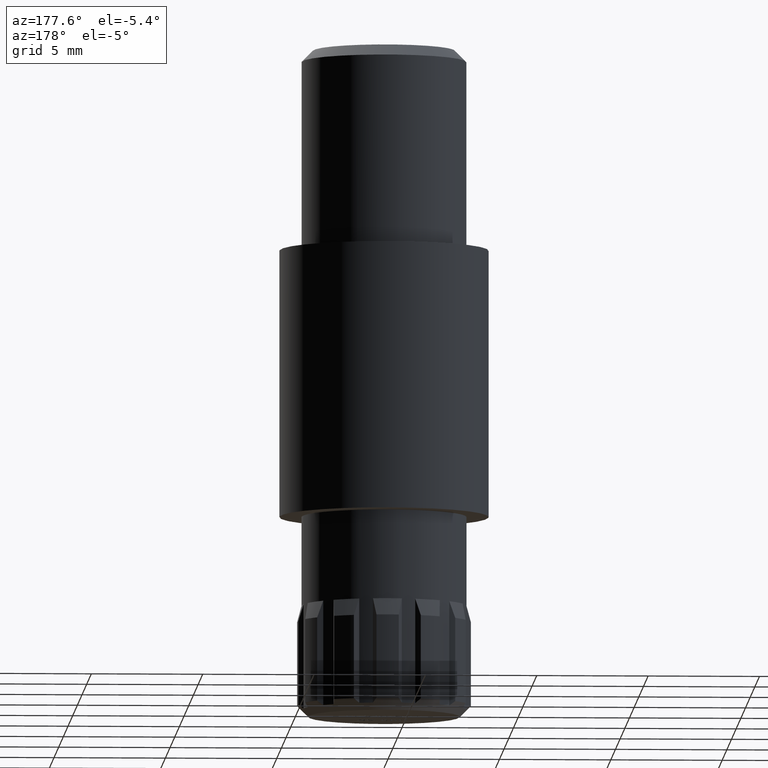
[diagram: clean part render]
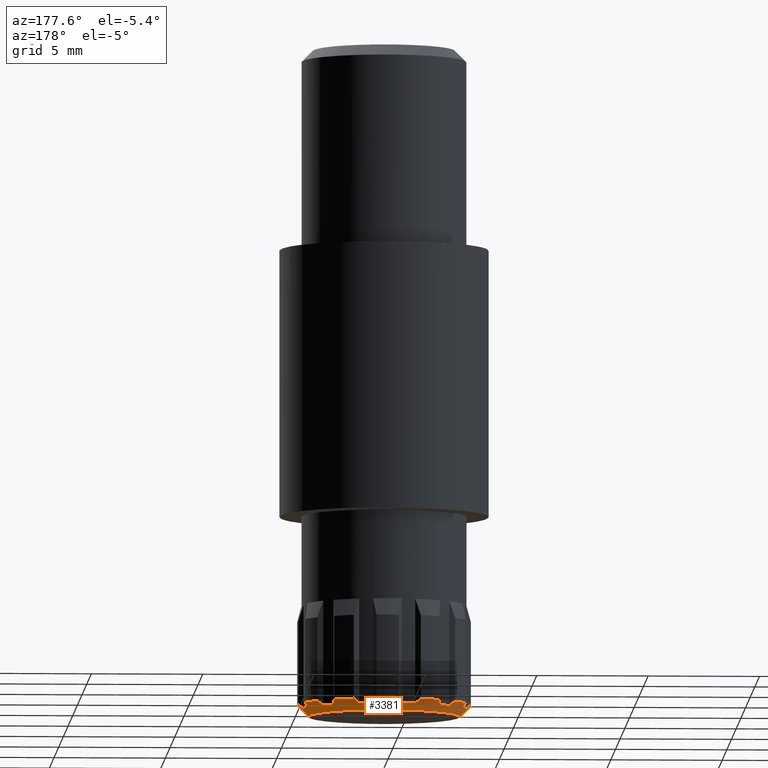
[diagram: same view with one face highlighted and labeled with its STEP entity id]
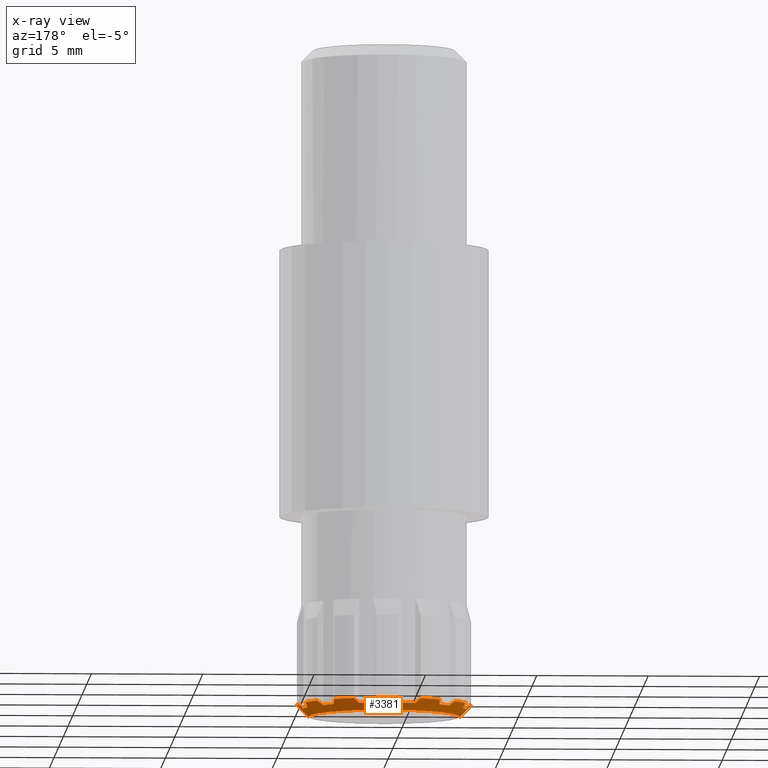
[diagram: x-ray of the same camera — body ghosted, the highlighted face saturated]
A machine part, auxiliary view. The second image highlights one B-rep face of the part: STEP entity #3381.
The next image is the same camera in x-ray: the body ghosted, the highlighted face saturated — about 0% of this face is hidden behind the body in this view.
In plain terms, the highlighted conical surface has half-angle 45 deg.
Its self-contained STEP definition (entity closure, byte-faithful):
#11 = DIRECTION ( 'NONE',  ( 0.0000000000000000000, 0.0000000000000000000, 1.000000000000000000 ) ) ;
#36 = VECTOR ( 'NONE', #270, 1000.000000000000000 ) ;
#42 = CARTESIAN_POINT ( 'NONE',  ( 2.920231908458082800, 2.378358262402964700, 0.3656850806298397300 ) ) ;
#114 = ORIENTED_EDGE ( 'NONE', *, *, #5816, .F. ) ;
#270 = DIRECTION ( 'NONE',  ( 0.7071067811865474600, 0.0000000000000000000, 0.7071067811865476800 ) ) ;
#394 = DIRECTION ( 'NONE',  ( -0.7071067811865474600, 8.659560562354931600E-017, 0.7071067811865476800 ) ) ;
#398 = VERTEX_POINT ( 'NONE', #1101 ) ;
#399 = CIRCLE ( 'NONE', #12137, 3.899999999999999900 ) ;
#608 = CARTESIAN_POINT ( 'NONE',  ( 0.0000000000000000000, 0.0000000000000000000, 0.3000000000000002100 ) ) ;
#660 = DIRECTION ( 'NONE',  ( -1.000000000000000000, 0.0000000000000000000, 0.0000000000000000000 ) ) ;
#679 = CARTESIAN_POINT ( 'NONE',  ( -2.829461126721935800, 2.384145493121054800, 0.3000000000000002100 ) ) ;
#687 = B_SPLINE_CURVE_WITH_KNOTS ( 'NONE', 3,
 ( #13293, #5889, #12213, #679 ),
 .UNSPECIFIED., .F., .F.,
 ( 4, 4 ),
 ( 2.510442313145261500E-007, 0.0003368312130818285500 ),
 .UNSPECIFIED. ) ;
#707 = CARTESIAN_POINT ( 'NONE',  ( -0.6500000000000001300, 3.642457961322272700, 0.3000000000000002100 ) ) ;
#775 = CARTESIAN_POINT ( 'NONE',  ( 0.0000000000000000000, 0.0000000000000000000, 0.3000000000000002100 ) ) ;
#851 = ORIENTED_EDGE ( 'NONE', *, *, #1864, .T. ) ;
#921 = CARTESIAN_POINT ( 'NONE',  ( 0.0000000000000000000, 0.0000000000000000000, -1.781601778477175500E-016 ) ) ;
#943 = VERTEX_POINT ( 'NONE', #5193 ) ;
#1022 = CIRCLE ( 'NONE', #10922, 3.899999999999999900 ) ;
#1050 = CARTESIAN_POINT ( 'NONE',  ( -3.099626844888817800, 2.366920662473627000, 0.4999999999999998900 ) ) ;
#1051 = VERTEX_POINT ( 'NONE', #6027 ) ;
#1097 = CARTESIAN_POINT ( 'NONE',  ( 0.0000000000000000000, 0.0000000000000000000, 0.4999999999999998900 ) ) ;
#1098 = B_SPLINE_CURVE_WITH_KNOTS ( 'NONE', 3,
 ( #1871, #9256, #2914, #10310 ),
 .UNSPECIFIED., .F., .F.,
 ( 4, 4 ),
 ( 2.963328429679369900E-007, 0.0003368765016934683000 ),
 .UNSPECIFIED. ) ;
#1101 = CARTESIAN_POINT ( 'NONE',  ( 3.642457961322274100, 0.6499999999999872500, 0.2999999999999999300 ) ) ;
#1200 = AXIS2_PLACEMENT_3D ( 'NONE', #9823, #3473, #10869 ) ;
#1230 = CARTESIAN_POINT ( 'NONE',  ( 0.5000000000000000000, 3.867815921162743200, 0.4999999999999998900 ) ) ;
#1346 = CARTESIAN_POINT ( 'NONE',  ( 0.0000000000000000000, 0.0000000000000000000, 0.4999999999999998900 ) ) ;
#1439 = CIRCLE ( 'NONE', #13045, 3.899999999999999900 ) ;
#1461 = ORIENTED_EDGE ( 'NONE', *, *, #9744, .T. ) ;
#1544 = CARTESIAN_POINT ( 'NONE',  ( -1.500895258689105800, 3.599626844888864400, 0.4999999999999998900 ) ) ;
#1555 = CIRCLE ( 'NONE', #1200, 3.700000000000000200 ) ;
#1556 = ORIENTED_EDGE ( 'NONE', *, *, #9678, .F. ) ;
#1626 = AXIS2_PLACEMENT_3D ( 'NONE', #6272, #11, #7355 ) ;
#1640 = DIRECTION ( 'NONE',  ( 1.000000000000000000, 0.0000000000000000000, 0.0000000000000000000 ) ) ;
#1641 = ORIENTED_EDGE ( 'NONE', *, *, #10101, .F. ) ;
#1695 = DIRECTION ( 'NONE',  ( 0.0000000000000000000, 0.0000000000000000000, 1.000000000000000000 ) ) ;
#1749 = B_SPLINE_CURVE_WITH_KNOTS ( 'NONE', 3,
 ( #6301, #7535, #9701, #3354 ),
 .UNSPECIFIED., .F., .F.,
 ( 4, 4 ),
 ( 3.009594860119628600E-007, 0.0003368811283365132100 ),
 .UNSPECIFIED. ) ;
#1815 = DIRECTION ( 'NONE',  ( 1.000000000000000000, 0.0000000000000000000, 0.0000000000000000000 ) ) ;
#1864 = EDGE_CURVE ( 'NONE', #11391, #943, #4296, .T. ) ;
#1871 = CARTESIAN_POINT ( 'NONE',  ( -0.6500000000000001300, 3.642457961322272700, 0.3000000000000002100 ) ) ;
#1876 = CARTESIAN_POINT ( 'NONE',  ( 1.420643085886664500, 3.559873159312598700, 0.4324234514250552300 ) ) ;
#1910 = AXIS2_PLACEMENT_3D ( 'NONE', #8028, #1695, #9069 ) ;
#1957 = DIRECTION ( 'NONE',  ( -1.000000000000000000, 0.0000000000000000000, 0.0000000000000000000 ) ) ;
#2067 = ORIENTED_EDGE ( 'NONE', *, *, #3444, .T. ) ;
#2090 = CARTESIAN_POINT ( 'NONE',  ( -3.867815921162737900, 0.5000000000000405200, 0.4999999999999998900 ) ) ;
#2136 = CARTESIAN_POINT ( 'NONE',  ( -3.642457961322265600, 0.6500000000000382100, 0.3000000000000002100 ) ) ;
#2152 = CARTESIAN_POINT ( 'NONE',  ( 2.829461126721969100, 2.384145493121014400, 0.2999999999999998200 ) ) ;
#2153 = DIRECTION ( 'NONE',  ( -1.000000000000000000, 0.0000000000000000000, 0.0000000000000000000 ) ) ;
#2238 = EDGE_CURVE ( 'NONE', #9791, #8843, #5072, .T. ) ;
#2400 = VERTEX_POINT ( 'NONE', #3761 ) ;
#2417 = DIRECTION ( 'NONE',  ( 0.0000000000000000000, 0.0000000000000000000, 1.000000000000000000 ) ) ;
#2434 = B_SPLINE_CURVE_WITH_KNOTS ( 'NONE', 3,
 ( #6774, #8928, #12090, #5758 ),
 .UNSPECIFIED., .F., .F.,
 ( 4, 4 ),
 ( 2.510442313139203600E-007, 0.0003368312130818276300 ),
 .UNSPECIFIED. ) ;
#2678 = EDGE_CURVE ( 'NONE', #13649, #2697, #5972, .T. ) ;
#2696 = VERTEX_POINT ( 'NONE', #10016 ) ;
#2697 = VERTEX_POINT ( 'NONE', #13361 ) ;
#2742 = CONICAL_SURFACE ( 'NONE', #6476, 3.899999999999999900, 0.7853981633974481700 ) ;
#2785 = LINE ( 'NONE', #12858, #36 ) ;
#2818 = CARTESIAN_POINT ( 'NONE',  ( -2.384145493120984700, 2.829461126721994000, 0.3000000000000002700 ) ) ;
#2859 = CARTESIAN_POINT ( 'NONE',  ( 3.867815921162745000, 0.4999999999999874500, 0.4999999999999998900 ) ) ;
#2914 = CARTESIAN_POINT ( 'NONE',  ( -0.5496235775677342800, 3.793262133158410000, 0.4324234514250556200 ) ) ;
#3114 = ORIENTED_EDGE ( 'NONE', *, *, #5760, .T. ) ;
#3189 = CARTESIAN_POINT ( 'NONE',  ( -3.867815921162737900, 0.5000000000000405200, 0.4999999999999998900 ) ) ;
#3354 = CARTESIAN_POINT ( 'NONE',  ( 0.6500000000000001300, 3.642457961322272700, 0.3000000000000002100 ) ) ;
#3377 = ORIENTED_EDGE ( 'NONE', *, *, #9412, .F. ) ;
#3381 = ADVANCED_FACE ( 'NONE', ( #11844 ), #2742, .T. ) ;
#3444 = EDGE_CURVE ( 'NONE', #10409, #7168, #687, .T. ) ;
#3462 = CARTESIAN_POINT ( 'NONE',  ( 0.0000000000000000000, 0.0000000000000000000, 0.4999999999999998900 ) ) ;
#3473 = DIRECTION ( 'NONE',  ( 0.0000000000000000000, 0.0000000000000000000, 1.000000000000000000 ) ) ;
#3530 = EDGE_CURVE ( 'NONE', #398, #6245, #10051, .T. ) ;
#3605 = VERTEX_POINT ( 'NONE', #8192 ) ;
#3624 = CARTESIAN_POINT ( 'NONE',  ( -1.420643085886614800, 3.559873159312618700, 0.4324234514250555100 ) ) ;
#3630 = DIRECTION ( 'NONE',  ( -0.0000000000000000000, -0.0000000000000000000, -1.000000000000000000 ) ) ;
#3761 = CARTESIAN_POINT ( 'NONE',  ( 3.399999999999999900, 0.0000000000000000000, -1.781601778477175500E-016 ) ) ;
#3820 = ORIENTED_EDGE ( 'NONE', *, *, #7819, .T. ) ;
#3917 = CARTESIAN_POINT ( 'NONE',  ( -2.366920662473551500, 3.099626844888875100, 0.4999999999999998900 ) ) ;
#4006 = CARTESIAN_POINT ( 'NONE',  ( -3.718174148868087900, 0.5996027203125889900, 0.3656850806298402900 ) ) ;
#4155 = CARTESIAN_POINT ( 'NONE',  ( -3.599626844888828000, 1.500895258689193700, 0.4999999999999998900 ) ) ;
#4189 = ORIENTED_EDGE ( 'NONE', *, *, #3530, .T. ) ;
#4296 = B_SPLINE_CURVE_WITH_KNOTS ( 'NONE', 3,
 ( #2090, #12784, #4006, #2136 ),
 .UNSPECIFIED., .F., .F.,
 ( 4, 4 ),
 ( 3.009594860119628600E-007, 0.0003368811283365131600 ),
 .UNSPECIFIED. ) ;
#4306 = CARTESIAN_POINT ( 'NONE',  ( 0.0000000000000000000, 0.0000000000000000000, 0.4999999999999998900 ) ) ;
#4341 = CARTESIAN_POINT ( 'NONE',  ( 3.599626844888849300, 1.500895258689144000, 0.4999999999999998900 ) ) ;
#4432 = ORIENTED_EDGE ( 'NONE', *, *, #5896, .F. ) ;
#4476 = VERTEX_POINT ( 'NONE', #10596 ) ;
#4505 = DIRECTION ( 'NONE',  ( -0.0000000000000000000, -0.0000000000000000000, -1.000000000000000000 ) ) ;
#4509 = EDGE_CURVE ( 'NONE', #5888, #10409, #1439, .T. ) ;
#4684 = CARTESIAN_POINT ( 'NONE',  ( -1.339815886465077300, 3.519834628770644800, 0.3656850806298399500 ) ) ;
#4740 = CARTESIAN_POINT ( 'NONE',  ( 1.500895258689155700, 3.599626844888843500, 0.4999999999999998900 ) ) ;
#4753 = EDGE_CURVE ( 'NONE', #10994, #7168, #10669, .T. ) ;
#4856 = EDGE_CURVE ( 'NONE', #1051, #11391, #9684, .T. ) ;
#4860 = EDGE_CURVE ( 'NONE', #8843, #3605, #2434, .T. ) ;
#4984 = CARTESIAN_POINT ( 'NONE',  ( 3.010249581744871300, 2.372619047271742800, 0.4324234514250552300 ) ) ;
#5020 = ORIENTED_EDGE ( 'NONE', *, *, #11849, .T. ) ;
#5072 = CIRCLE ( 'NONE', #5589, 3.899999999999999900 ) ;
#5139 = ORIENTED_EDGE ( 'NONE', *, *, #5745, .F. ) ;
#5178 = VERTEX_POINT ( 'NONE', #5289 ) ;
#5188 = CARTESIAN_POINT ( 'NONE',  ( -3.559873159312583600, 1.420643085886701900, 0.4324234514250554500 ) ) ;
#5193 = CARTESIAN_POINT ( 'NONE',  ( -3.642457961322265600, 0.6500000000000382100, 0.3000000000000002100 ) ) ;
#5211 = B_SPLINE_CURVE_WITH_KNOTS ( 'NONE', 3,
 ( #2818, #9198, #10256, #3917 ),
 .UNSPECIFIED., .F., .F.,
 ( 4, 4 ),
 ( 2.471854986457094700E-007, 0.0003368273543491591100 ),
 .UNSPECIFIED. ) ;
#5260 = LINE ( 'NONE', #12996, #13042 ) ;
#5280 = B_SPLINE_CURVE_WITH_KNOTS ( 'NONE', 3,
 ( #10459, #6203, #5188, #12576 ),
 .UNSPECIFIED., .F., .F.,
 ( 4, 4 ),
 ( 2.752915829492909400E-007, 0.0003368554604334561200 ),
 .UNSPECIFIED. ) ;
#5289 = CARTESIAN_POINT ( 'NONE',  ( 1.258312468201254800, 3.479461126721961900, 0.2999999999999999300 ) ) ;
#5361 = ORIENTED_EDGE ( 'NONE', *, *, #2238, .T. ) ;
#5373 = DIRECTION ( 'NONE',  ( -1.000000000000000000, 0.0000000000000000000, 0.0000000000000000000 ) ) ;
#5374 = DIRECTION ( 'NONE',  ( -1.000000000000000000, 0.0000000000000000000, 0.0000000000000000000 ) ) ;
#5416 = CARTESIAN_POINT ( 'NONE',  ( 3.479461126721966800, 1.258312468201242800, 0.3000000000000002100 ) ) ;
#5515 = EDGE_CURVE ( 'NONE', #13649, #3605, #1555, .T. ) ;
#5589 = AXIS2_PLACEMENT_3D ( 'NONE', #1346, #5999, #5374 ) ;
#5685 = AXIS2_PLACEMENT_3D ( 'NONE', #8752, #2417, #9813 ) ;
#5745 = EDGE_CURVE ( 'NONE', #5178, #8033, #7984, .T. ) ;
#5758 = CARTESIAN_POINT ( 'NONE',  ( 2.384145493121024600, 2.829461126721961200, 0.3000000000000002100 ) ) ;
#5760 = EDGE_CURVE ( 'NONE', #10994, #4476, #5211, .T. ) ;
#5816 = EDGE_CURVE ( 'NONE', #9225, #2400, #12932, .T. ) ;
#5888 = VERTEX_POINT ( 'NONE', #4155 ) ;
#5889 = CARTESIAN_POINT ( 'NONE',  ( -3.010249581744838900, 2.372619047271785400, 0.4324234514250556200 ) ) ;
#5896 = EDGE_CURVE ( 'NONE', #9020, #7293, #12582, .T. ) ;
#5900 = CARTESIAN_POINT ( 'NONE',  ( 0.0000000000000000000, 0.0000000000000000000, 0.4999999999999998900 ) ) ;
#5972 = B_SPLINE_CURVE_WITH_KNOTS ( 'NONE', 3,
 ( #2152, #42, #4984, #6318 ),
 .UNSPECIFIED., .F., .F.,
 ( 4, 4 ),
 ( 2.471854986452647300E-007, 0.0003368273543491591700 ),
 .UNSPECIFIED. ) ;
#5989 = CARTESIAN_POINT ( 'NONE',  ( 3.642457961322274100, 0.6499999999999872500, 0.2999999999999999300 ) ) ;
#5999 = DIRECTION ( 'NONE',  ( -0.0000000000000000000, -0.0000000000000000000, -1.000000000000000000 ) ) ;
#6027 = CARTESIAN_POINT ( 'NONE',  ( -3.899999999999999900, 0.0000000000000000000, 0.4999999999999998900 ) ) ;
#6063 = CARTESIAN_POINT ( 'NONE',  ( -1.258312468201206300, 3.479461126721979700, 0.3000000000000000400 ) ) ;
#6203 = CARTESIAN_POINT ( 'NONE',  ( -3.519834628770611900, 1.339815886465163500, 0.3656850806298400600 ) ) ;
#6245 = VERTEX_POINT ( 'NONE', #12801 ) ;
#6272 = CARTESIAN_POINT ( 'NONE',  ( 0.0000000000000000000, 0.0000000000000000000, 0.3000000000000002100 ) ) ;
#6301 = CARTESIAN_POINT ( 'NONE',  ( 0.5000000000000000000, 3.867815921162743200, 0.4999999999999998900 ) ) ;
#6318 = CARTESIAN_POINT ( 'NONE',  ( 3.099626844888850200, 2.366920662473584800, 0.4999999999999998900 ) ) ;
#6432 = ORIENTED_EDGE ( 'NONE', *, *, #8347, .T. ) ;
#6475 = ORIENTED_EDGE ( 'NONE', *, *, #9508, .T. ) ;
#6476 = AXIS2_PLACEMENT_3D ( 'NONE', #3462, #6729, #7828 ) ;
#6529 = ORIENTED_EDGE ( 'NONE', *, *, #7235, .T. ) ;
#6729 = DIRECTION ( 'NONE',  ( 0.0000000000000000000, 0.0000000000000000000, 1.000000000000000000 ) ) ;
#6737 = AXIS2_PLACEMENT_3D ( 'NONE', #13273, #6942, #660 ) ;
#6774 = CARTESIAN_POINT ( 'NONE',  ( 2.366920662473594600, 3.099626844888842200, 0.4999999999999998900 ) ) ;
#6812 = ORIENTED_EDGE ( 'NONE', *, *, #7471, .T. ) ;
#6818 = AXIS2_PLACEMENT_3D ( 'NONE', #775, #8152, #1815 ) ;
#6942 = DIRECTION ( 'NONE',  ( -0.0000000000000000000, -0.0000000000000000000, -1.000000000000000000 ) ) ;
#6968 = DIRECTION ( 'NONE',  ( -1.000000000000000000, 0.0000000000000000000, 0.0000000000000000000 ) ) ;
#7127 = CARTESIAN_POINT ( 'NONE',  ( 1.258312468201254800, 3.479461126721961900, 0.2999999999999999300 ) ) ;
#7168 = VERTEX_POINT ( 'NONE', #11027 ) ;
#7235 = EDGE_CURVE ( 'NONE', #2697, #11556, #12744, .T. ) ;
#7254 = B_SPLINE_CURVE_WITH_KNOTS ( 'NONE', 3,
 ( #7127, #13453, #1876, #9264 ),
 .UNSPECIFIED., .F., .F.,
 ( 4, 4 ),
 ( 2.752915829491943300E-007, 0.0003368554604334561200 ),
 .UNSPECIFIED. ) ;
#7267 = CIRCLE ( 'NONE', #1910, 3.700000000000000200 ) ;
#7293 = VERTEX_POINT ( 'NONE', #6063 ) ;
#7355 = DIRECTION ( 'NONE',  ( 1.000000000000000000, 0.0000000000000000000, 0.0000000000000000000 ) ) ;
#7471 = EDGE_CURVE ( 'NONE', #9787, #7293, #12060, .T. ) ;
#7535 = CARTESIAN_POINT ( 'NONE',  ( 0.5496235775677341700, 3.793262133158410400, 0.4324234514250557800 ) ) ;
#7601 = ORIENTED_EDGE ( 'NONE', *, *, #4753, .F. ) ;
#7620 = CARTESIAN_POINT ( 'NONE',  ( -3.399999999999999900, 4.469960816887839400E-016, -1.781601778477175500E-016 ) ) ;
#7633 = VERTEX_POINT ( 'NONE', #13581 ) ;
#7655 = ORIENTED_EDGE ( 'NONE', *, *, #10180, .T. ) ;
#7819 = EDGE_CURVE ( 'NONE', #4476, #9787, #399, .T. ) ;
#7828 = DIRECTION ( 'NONE',  ( 1.000000000000000000, 0.0000000000000000000, 0.0000000000000000000 ) ) ;
#7952 = CARTESIAN_POINT ( 'NONE',  ( 3.899999999999999900, 0.0000000000000000000, 0.4999999999999998900 ) ) ;
#7973 = DIRECTION ( 'NONE',  ( 0.0000000000000000000, 0.0000000000000000000, 1.000000000000000000 ) ) ;
#7982 = CARTESIAN_POINT ( 'NONE',  ( 2.829461126721969100, 2.384145493121014400, 0.2999999999999998200 ) ) ;
#7984 = CIRCLE ( 'NONE', #6818, 3.700000000000000200 ) ;
#8028 = CARTESIAN_POINT ( 'NONE',  ( 0.0000000000000000000, 0.0000000000000000000, 0.3000000000000002100 ) ) ;
#8033 = VERTEX_POINT ( 'NONE', #11856 ) ;
#8152 = DIRECTION ( 'NONE',  ( 0.0000000000000000000, 0.0000000000000000000, 1.000000000000000000 ) ) ;
#8192 = CARTESIAN_POINT ( 'NONE',  ( 2.384145493121024600, 2.829461126721961200, 0.3000000000000002100 ) ) ;
#8206 = CARTESIAN_POINT ( 'NONE',  ( -0.5000000000000008900, 3.867815921162742800, 0.4999999999999998900 ) ) ;
#8301 = DIRECTION ( 'NONE',  ( -0.0000000000000000000, -0.0000000000000000000, -1.000000000000000000 ) ) ;
#8347 = EDGE_CURVE ( 'NONE', #2696, #5888, #5280, .T. ) ;
#8476 = DIRECTION ( 'NONE',  ( -0.0000000000000000000, -0.0000000000000000000, -1.000000000000000000 ) ) ;
#8550 = AXIS2_PLACEMENT_3D ( 'NONE', #9970, #3630, #11037 ) ;
#8653 = EDGE_LOOP ( 'NONE', ( #114, #1461, #10649, #851, #3377, #6432, #10243, #2067, #7601, #3114, #3820, #6812, #4432, #11468, #12845, #5020, #5139, #6475, #5361, #11624, #8807, #13566, #6529, #10746, #1641, #4189, #7655, #1556 ) ) ;
#8684 = VERTEX_POINT ( 'NONE', #8206 ) ;
#8686 = EDGE_CURVE ( 'NONE', #9020, #8684, #1098, .T. ) ;
#8752 = CARTESIAN_POINT ( 'NONE',  ( 0.0000000000000000000, 0.0000000000000000000, 0.3000000000000002100 ) ) ;
#8775 = EDGE_CURVE ( 'NONE', #8684, #12893, #1022, .T. ) ;
#8807 = ORIENTED_EDGE ( 'NONE', *, *, #5515, .F. ) ;
#8843 = VERTEX_POINT ( 'NONE', #9593 ) ;
#8928 = CARTESIAN_POINT ( 'NONE',  ( 2.372619047271753400, 3.010249581744863300, 0.4324234514250557300 ) ) ;
#8932 = CARTESIAN_POINT ( 'NONE',  ( -1.500895258689105800, 3.599626844888864400, 0.4999999999999998900 ) ) ;
#8934 = VERTEX_POINT ( 'NONE', #7952 ) ;
#9020 = VERTEX_POINT ( 'NONE', #707 ) ;
#9069 = DIRECTION ( 'NONE',  ( 1.000000000000000000, 0.0000000000000000000, 0.0000000000000000000 ) ) ;
#9189 = CARTESIAN_POINT ( 'NONE',  ( 3.793262133158412200, 0.5496235775677211800, 0.4324234514250555100 ) ) ;
#9198 = CARTESIAN_POINT ( 'NONE',  ( -2.378358262402933600, 2.920231908458107700, 0.3656850806298401800 ) ) ;
#9225 = VERTEX_POINT ( 'NONE', #7620 ) ;
#9256 = CARTESIAN_POINT ( 'NONE',  ( -0.5996027203125501300, 3.718174148868093700, 0.3656850806298400600 ) ) ;
#9264 = CARTESIAN_POINT ( 'NONE',  ( 1.500895258689155700, 3.599626844888843500, 0.4999999999999998900 ) ) ;
#9412 = EDGE_CURVE ( 'NONE', #2696, #943, #7267, .T. ) ;
#9497 = CARTESIAN_POINT ( 'NONE',  ( -2.384145493120984700, 2.829461126721994000, 0.3000000000000002700 ) ) ;
#9508 = EDGE_CURVE ( 'NONE', #5178, #9791, #7254, .T. ) ;
#9593 = CARTESIAN_POINT ( 'NONE',  ( 2.366920662473594600, 3.099626844888842200, 0.4999999999999998900 ) ) ;
#9663 = EDGE_CURVE ( 'NONE', #11556, #7633, #11895, .T. ) ;
#9678 = EDGE_CURVE ( 'NONE', #2400, #8934, #2785, .T. ) ;
#9684 = CIRCLE ( 'NONE', #8550, 3.899999999999999900 ) ;
#9701 = CARTESIAN_POINT ( 'NONE',  ( 0.5996027203125501300, 3.718174148868094200, 0.3656850806298400100 ) ) ;
#9744 = EDGE_CURVE ( 'NONE', #9225, #1051, #5260, .T. ) ;
#9787 = VERTEX_POINT ( 'NONE', #8932 ) ;
#9791 = VERTEX_POINT ( 'NONE', #4740 ) ;
#9813 = DIRECTION ( 'NONE',  ( 1.000000000000000000, 0.0000000000000000000, 0.0000000000000000000 ) ) ;
#9823 = CARTESIAN_POINT ( 'NONE',  ( 0.0000000000000000000, 0.0000000000000000000, 0.3000000000000002100 ) ) ;
#9970 = CARTESIAN_POINT ( 'NONE',  ( 0.0000000000000000000, 0.0000000000000000000, 0.4999999999999998900 ) ) ;
#10016 = CARTESIAN_POINT ( 'NONE',  ( -3.479461126721949100, 1.258312468201291400, 0.3000000000000002700 ) ) ;
#10051 = B_SPLINE_CURVE_WITH_KNOTS ( 'NONE', 3,
 ( #5989, #13391, #9189, #2859 ),
 .UNSPECIFIED., .F., .F.,
 ( 4, 4 ),
 ( 2.963328429672440200E-007, 0.0003368765016934686700 ),
 .UNSPECIFIED. ) ;
#10101 = EDGE_CURVE ( 'NONE', #398, #7633, #13190, .T. ) ;
#10180 = EDGE_CURVE ( 'NONE', #6245, #8934, #12525, .T. ) ;
#10243 = ORIENTED_EDGE ( 'NONE', *, *, #4509, .T. ) ;
#10256 = CARTESIAN_POINT ( 'NONE',  ( -2.372619047271711700, 3.010249581744896700, 0.4324234514250555600 ) ) ;
#10310 = CARTESIAN_POINT ( 'NONE',  ( -0.5000000000000008900, 3.867815921162742800, 0.4999999999999998900 ) ) ;
#10409 = VERTEX_POINT ( 'NONE', #1050 ) ;
#10459 = CARTESIAN_POINT ( 'NONE',  ( -3.479461126721949100, 1.258312468201291400, 0.3000000000000002700 ) ) ;
#10596 = CARTESIAN_POINT ( 'NONE',  ( -2.366920662473551500, 3.099626844888875100, 0.4999999999999998900 ) ) ;
#10649 = ORIENTED_EDGE ( 'NONE', *, *, #4856, .T. ) ;
#10669 = CIRCLE ( 'NONE', #5685, 3.700000000000000200 ) ;
#10685 = CARTESIAN_POINT ( 'NONE',  ( 3.559873159312604100, 1.420643085886652300, 0.4324234514250560600 ) ) ;
#10746 = ORIENTED_EDGE ( 'NONE', *, *, #9663, .T. ) ;
#10845 = AXIS2_PLACEMENT_3D ( 'NONE', #608, #7973, #1640 ) ;
#10846 = CARTESIAN_POINT ( 'NONE',  ( 0.0000000000000000000, 0.0000000000000000000, 0.4999999999999998900 ) ) ;
#10869 = DIRECTION ( 'NONE',  ( 1.000000000000000000, 0.0000000000000000000, 0.0000000000000000000 ) ) ;
#10922 = AXIS2_PLACEMENT_3D ( 'NONE', #1097, #8476, #2153 ) ;
#10994 = VERTEX_POINT ( 'NONE', #9497 ) ;
#11027 = CARTESIAN_POINT ( 'NONE',  ( -2.829461126721935800, 2.384145493121054800, 0.3000000000000002100 ) ) ;
#11037 = DIRECTION ( 'NONE',  ( -1.000000000000000000, 0.0000000000000000000, 0.0000000000000000000 ) ) ;
#11391 = VERTEX_POINT ( 'NONE', #3189 ) ;
#11468 = ORIENTED_EDGE ( 'NONE', *, *, #8686, .T. ) ;
#11556 = VERTEX_POINT ( 'NONE', #11955 ) ;
#11624 = ORIENTED_EDGE ( 'NONE', *, *, #4860, .T. ) ;
#11717 = DIRECTION ( 'NONE',  ( -0.0000000000000000000, -0.0000000000000000000, -1.000000000000000000 ) ) ;
#11754 = CARTESIAN_POINT ( 'NONE',  ( 3.519834628770631000, 1.339815886465114600, 0.3656850806298401800 ) ) ;
#11844 = FACE_OUTER_BOUND ( 'NONE', #8653, .T. ) ;
#11849 = EDGE_CURVE ( 'NONE', #12893, #8033, #1749, .T. ) ;
#11856 = CARTESIAN_POINT ( 'NONE',  ( 0.6500000000000001300, 3.642457961322272700, 0.3000000000000002100 ) ) ;
#11895 = B_SPLINE_CURVE_WITH_KNOTS ( 'NONE', 3,
 ( #4341, #10685, #11754, #5416 ),
 .UNSPECIFIED., .F., .F.,
 ( 4, 4 ),
 ( 2.795894356304388300E-007, 0.0003368597582861379900 ),
 .UNSPECIFIED. ) ;
#11901 = DIRECTION ( 'NONE',  ( -1.000000000000000000, 0.0000000000000000000, 0.0000000000000000000 ) ) ;
#11955 = CARTESIAN_POINT ( 'NONE',  ( 3.599626844888849300, 1.500895258689144000, 0.4999999999999998900 ) ) ;
#12060 = B_SPLINE_CURVE_WITH_KNOTS ( 'NONE', 3,
 ( #1544, #3624, #4684, #12084 ),
 .UNSPECIFIED., .F., .F.,
 ( 4, 4 ),
 ( 2.795894356310995200E-007, 0.0003368597582861382600 ),
 .UNSPECIFIED. ) ;
#12084 = CARTESIAN_POINT ( 'NONE',  ( -1.258312468201206300, 3.479461126721979700, 0.3000000000000000400 ) ) ;
#12090 = CARTESIAN_POINT ( 'NONE',  ( 2.378358262402974400, 2.920231908458074300, 0.3656850806298400600 ) ) ;
#12137 = AXIS2_PLACEMENT_3D ( 'NONE', #10846, #4505, #11901 ) ;
#12213 = CARTESIAN_POINT ( 'NONE',  ( -2.920231908458049500, 2.378358262403005100, 0.3656850806298401800 ) ) ;
#12231 = AXIS2_PLACEMENT_3D ( 'NONE', #5900, #13305, #6968 ) ;
#12487 = AXIS2_PLACEMENT_3D ( 'NONE', #921, #8301, #1957 ) ;
#12525 = CIRCLE ( 'NONE', #12231, 3.899999999999999900 ) ;
#12576 = CARTESIAN_POINT ( 'NONE',  ( -3.599626844888828000, 1.500895258689193700, 0.4999999999999998900 ) ) ;
#12582 = CIRCLE ( 'NONE', #1626, 3.700000000000000200 ) ;
#12744 = CIRCLE ( 'NONE', #6737, 3.899999999999999900 ) ;
#12784 = CARTESIAN_POINT ( 'NONE',  ( -3.793262133158405100, 0.5496235775677736900, 0.4324234514250554500 ) ) ;
#12801 = CARTESIAN_POINT ( 'NONE',  ( 3.867815921162745000, 0.4999999999999874500, 0.4999999999999998900 ) ) ;
#12845 = ORIENTED_EDGE ( 'NONE', *, *, #8775, .T. ) ;
#12858 = CARTESIAN_POINT ( 'NONE',  ( 3.899999999999999900, 0.0000000000000000000, 0.4999999999999998900 ) ) ;
#12893 = VERTEX_POINT ( 'NONE', #1230 ) ;
#12932 = CIRCLE ( 'NONE', #12487, 3.399999999999999900 ) ;
#12996 = CARTESIAN_POINT ( 'NONE',  ( -3.899999999999999900, 4.776122516674677300E-016, 0.4999999999999998900 ) ) ;
#13042 = VECTOR ( 'NONE', #394, 1000.000000000000000 ) ;
#13045 = AXIS2_PLACEMENT_3D ( 'NONE', #4306, #11717, #5373 ) ;
#13190 = CIRCLE ( 'NONE', #10845, 3.700000000000000200 ) ;
#13273 = CARTESIAN_POINT ( 'NONE',  ( 0.0000000000000000000, 0.0000000000000000000, 0.4999999999999998900 ) ) ;
#13293 = CARTESIAN_POINT ( 'NONE',  ( -3.099626844888817800, 2.366920662473627000, 0.4999999999999998900 ) ) ;
#13305 = DIRECTION ( 'NONE',  ( -0.0000000000000000000, -0.0000000000000000000, -1.000000000000000000 ) ) ;
#13361 = CARTESIAN_POINT ( 'NONE',  ( 3.099626844888850200, 2.366920662473584800, 0.4999999999999998900 ) ) ;
#13391 = CARTESIAN_POINT ( 'NONE',  ( 3.718174148868095500, 0.5996027203125372500, 0.3656850806298398400 ) ) ;
#13453 = CARTESIAN_POINT ( 'NONE',  ( 1.339815886465126600, 3.519834628770625700, 0.3656850806298397300 ) ) ;
#13566 = ORIENTED_EDGE ( 'NONE', *, *, #2678, .T. ) ;
#13581 = CARTESIAN_POINT ( 'NONE',  ( 3.479461126721966800, 1.258312468201242800, 0.3000000000000002100 ) ) ;
#13649 = VERTEX_POINT ( 'NONE', #7982 ) ;